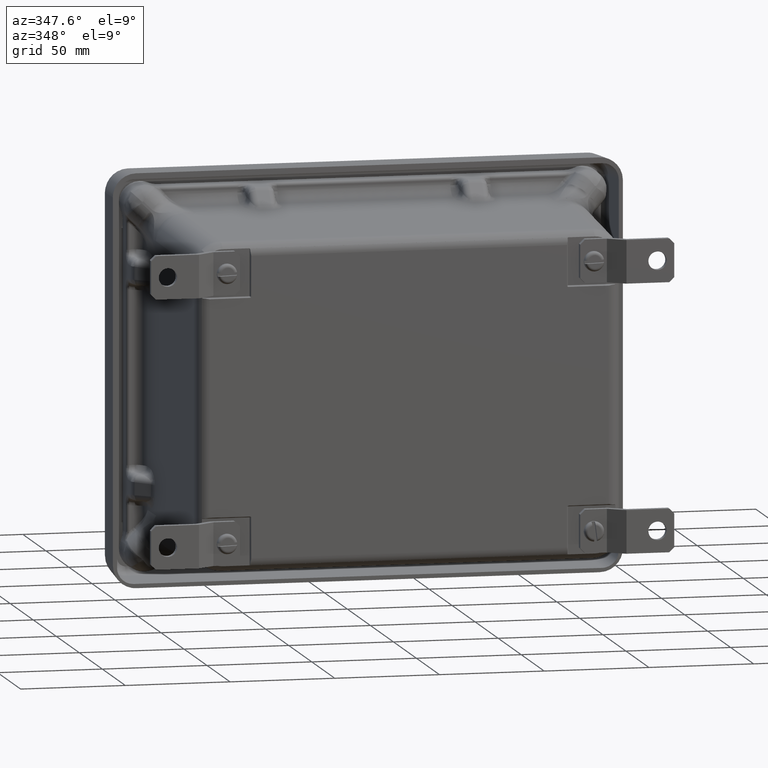
[diagram: clean part render]
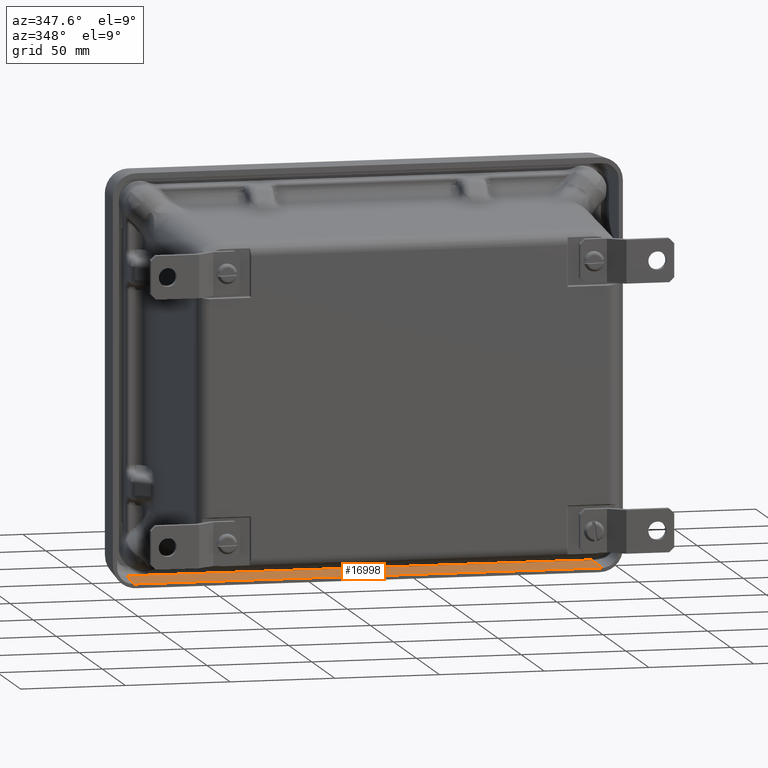
[diagram: same view with one face highlighted and labeled with its STEP entity id]
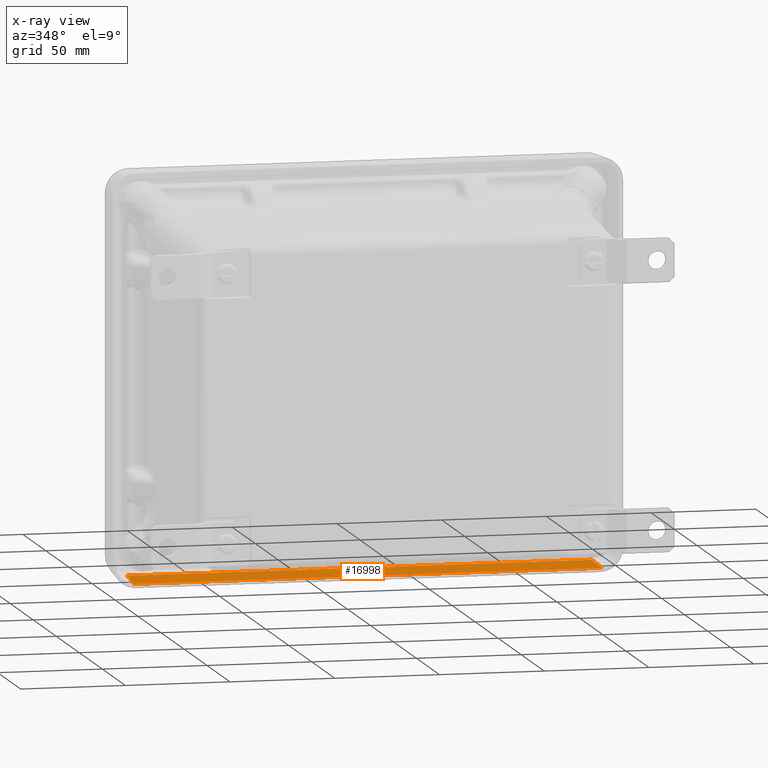
[diagram: x-ray of the same camera — body ghosted, the highlighted face saturated]
A machine part, auxiliary view. The second image highlights one B-rep face of the part: STEP entity #16998.
The next image is the same camera in x-ray: the body ghosted, the highlighted face saturated — about 0% of this face is hidden behind the body in this view.
In plain terms, the highlighted planar face has unit normal (-0, -0.0523, 0.9986).
Its self-contained STEP definition (entity closure, byte-faithful):
#555 = VECTOR ( 'NONE', #31994, 39.37007874015748100 ) ;
#1124 = CARTESIAN_POINT ( 'NONE',  ( 0.3907156079707672600, -1.000000000000000000, -7.632856806872662300 ) ) ;
#1823 = ORIENTED_EDGE ( 'NONE', *, *, #18492, .T. ) ;
#1960 = DIRECTION ( 'NONE',  ( -0.05226442768871403900, -0.9972646886342373400, -0.05226442768871403900 ) ) ;
#2583 = LINE ( 'NONE', #15861, #17300 ) ;
#3455 = DIRECTION ( 'NONE',  ( -1.168603165959803200E-016, -0.05233595624294397300, 0.9986295347545739400 ) ) ;
#3583 = CARTESIAN_POINT ( 'NONE',  ( 9.152278667142921300, -0.1412396117140137200, -7.587851081986349800 ) ) ;
#5860 = AXIS2_PLACEMENT_3D ( 'NONE', #36757, #3455, #26986 ) ;
#6747 = ORIENTED_EDGE ( 'NONE', *, *, #19829, .T. ) ;
#8522 = CARTESIAN_POINT ( 'NONE',  ( -9.261391019794483400E-018, -1.000000000000000000, -7.632856806872662300 ) ) ;
#8552 = FACE_OUTER_BOUND ( 'NONE', #22281, .T. ) ;
#9165 = ORIENTED_EDGE ( 'NONE', *, *, #30190, .T. ) ;
#10366 = DIRECTION ( 'NONE',  ( -0.05226442768871403900, 0.9972646886342373400, 0.05226442768871402500 ) ) ;
#12197 = CARTESIAN_POINT ( 'NONE',  ( 0.4288246798292361700, -0.2728355908261006500, -7.594747735014193400 ) ) ;
#12643 = DIRECTION ( 'NONE',  ( -1.000000000000000000, -5.219204900824829600E-034, -1.170206893837765700E-016 ) ) ;
#13766 = VECTOR ( 'NONE', #10366, 39.37007874015748900 ) ;
#15861 = CARTESIAN_POINT ( 'NONE',  ( 9.462999999999999200, -0.2728355908261007600, -7.594747735014192500 ) ) ;
#16998 = ADVANCED_FACE ( 'NONE', ( #8552 ), #22589, .T. ) ;
#17300 = VECTOR ( 'NONE', #12643, 39.37007874015748100 ) ;
#18492 = EDGE_CURVE ( 'NONE', #41361, #35776, #24222, .T. ) ;
#18733 = CARTESIAN_POINT ( 'NONE',  ( 0.3898645259844170100, -1.016239611714013800, -7.633707888859012400 ) ) ;
#19155 = VERTEX_POINT ( 'NONE', #36047 ) ;
#19829 = EDGE_CURVE ( 'NONE', #19155, #41361, #2583, .T. ) ;
#22281 = EDGE_LOOP ( 'NONE', ( #9165, #6747, #1823, #28836 ) ) ;
#22589 = PLANE ( 'NONE',  #5860 ) ;
#24204 = VERTEX_POINT ( 'NONE', #31020 ) ;
#24222 = LINE ( 'NONE', #18733, #32076 ) ;
#26328 = LINE ( 'NONE', #8522, #555 ) ;
#26986 = DIRECTION ( 'NONE',  ( 0.0000000000000000000, -0.9986295347545738300, -0.05233595624294396600 ) ) ;
#28836 = ORIENTED_EDGE ( 'NONE', *, *, #37761, .T. ) ;
#30190 = EDGE_CURVE ( 'NONE', #24204, #19155, #31609, .T. ) ;
#31020 = CARTESIAN_POINT ( 'NONE',  ( 9.197284392029233800, -1.000000000000000000, -7.632856806872661400 ) ) ;
#31609 = LINE ( 'NONE', #3583, #13766 ) ;
#31994 = DIRECTION ( 'NONE',  ( 1.000000000000000000, -0.0000000000000000000, 1.170206893837765700E-016 ) ) ;
#32076 = VECTOR ( 'NONE', #1960, 39.37007874015748900 ) ;
#35776 = VERTEX_POINT ( 'NONE', #1124 ) ;
#36047 = CARTESIAN_POINT ( 'NONE',  ( 9.159175320170764000, -0.2728355908261008200, -7.594747735014192500 ) ) ;
#36757 = CARTESIAN_POINT ( 'NONE',  ( 9.462999999999999200, -0.1250000000000000300, -7.586999999999999700 ) ) ;
#37761 = EDGE_CURVE ( 'NONE', #35776, #24204, #26328, .T. ) ;
#41361 = VERTEX_POINT ( 'NONE', #12197 ) ;